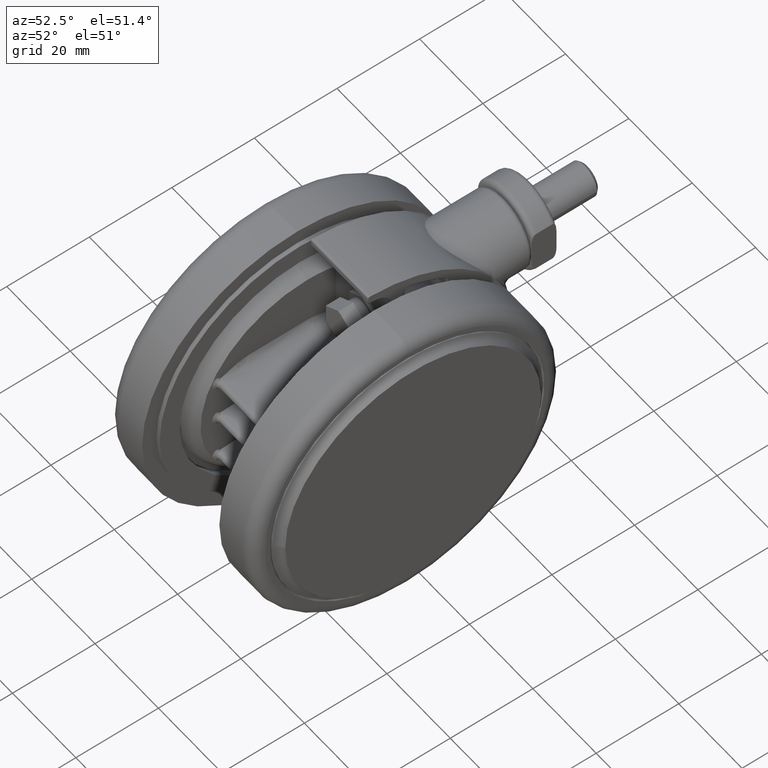
[diagram: clean part render]
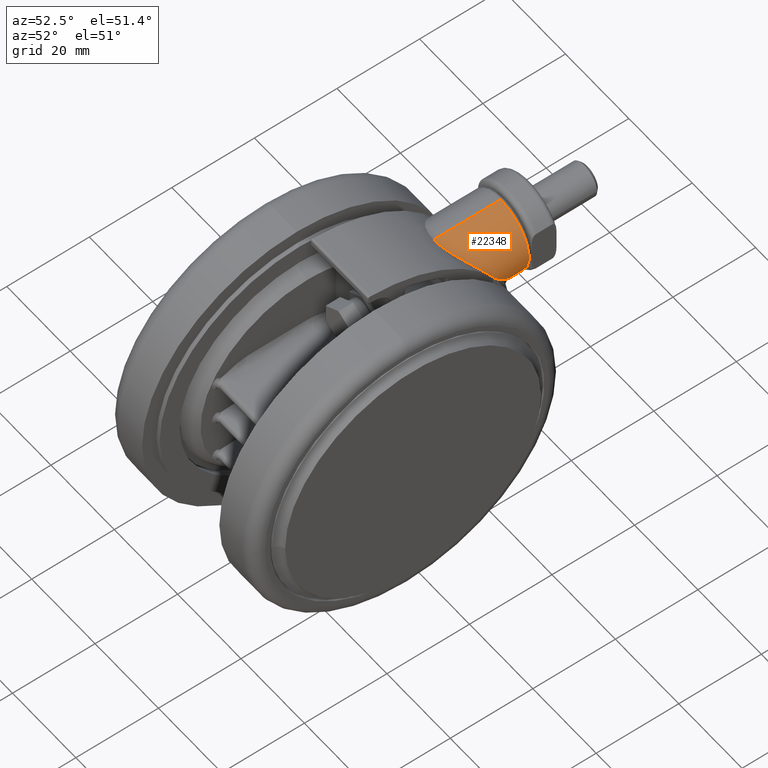
[diagram: same view with one face highlighted and labeled with its STEP entity id]
A machine part, auxiliary view. The second image highlights one B-rep face of the part: STEP entity #22348.
In plain terms, the highlighted cylindrical surface (partial cylindrical patch) has radius 9 mm, axis along (0, 1, 0).
Its self-contained STEP definition (entity closure, byte-faithful):
#497 = CYLINDRICAL_SURFACE ( 'NONE', #46967, 8.999999999999998200 ) ;
#979 = CARTESIAN_POINT ( 'NONE',  ( -36.92553332010082600, -13.61452785778634800, -18.15744400820869600 ) ) ;
#1130 = CARTESIAN_POINT ( 'NONE',  ( -37.58221321066444900, -11.78918439976165400, -20.80921100357775100 ) ) ;
#1242 = CARTESIAN_POINT ( 'NONE',  ( -26.16574146309534800, -26.86740031632782800, -18.65414359588525500 ) ) ;
#1404 = CARTESIAN_POINT ( 'NONE',  ( -23.77498685593116400, -29.00000000000517300, -24.49999999999997900 ) ) ;
#1985 = DIRECTION ( 'NONE',  ( 1.000000000000000000, 2.997602166487920300E-015, 0.0000000000000000000 ) ) ;
#2002 = CARTESIAN_POINT ( 'NONE',  ( -31.93203256544361300, -19.72222138739081700, -15.50428687528633600 ) ) ;
#2144 = CARTESIAN_POINT ( 'NONE',  ( -32.54882872669404000, -19.04437870621105200, -15.55064259133944800 ) ) ;
#2309 = CARTESIAN_POINT ( 'NONE',  ( -33.25889071469955400, -18.34811008380844300, -15.65289095228653700 ) ) ;
#2474 = CARTESIAN_POINT ( 'NONE',  ( -33.56341474608372300, -18.06022399064942300, -15.71152330509052700 ) ) ;
#2635 = CARTESIAN_POINT ( 'NONE',  ( -34.29659873121220700, -17.36862258609035300, -15.89306945349581900 ) ) ;
#2797 = CARTESIAN_POINT ( 'NONE',  ( -34.99513860883757100, -16.67912839033606800, -16.13508243046263900 ) ) ;
#2965 = CARTESIAN_POINT ( 'NONE',  ( -35.87792942236473000, -15.66181007390665400, -16.61167517670917700 ) ) ;
#3704 = ORIENTED_EDGE ( 'NONE', *, *, #13467, .T. ) ;
#4573 = CARTESIAN_POINT ( 'NONE',  ( -36.38098685608309800, -14.85141390802005100, -17.10893047513354000 ) ) ;
#4590 = CARTESIAN_POINT ( 'NONE',  ( 500000.0000000000000, -10.99999999850630100, -24.49999999999997900 ) ) ;
#4742 = CARTESIAN_POINT ( 'NONE',  ( -36.99108746103818400, -13.44810256492034000, -18.32839921172173400 ) ) ;
#4854 = CARTESIAN_POINT ( 'NONE',  ( -31.72144385112048700, -20.00000000000519400, -15.49999999999994700 ) ) ;
#4909 = CARTESIAN_POINT ( 'NONE',  ( -37.69784564058681300, -11.42413380355122300, -21.73922361660785200 ) ) ;
#5008 = CARTESIAN_POINT ( 'NONE',  ( -25.43912302963778400, -27.55274609399373600, -19.59633223457591800 ) ) ;
#5748 = CARTESIAN_POINT ( 'NONE',  ( -31.94287243112489000, -19.70909555049046300, -15.50470222085545100 ) ) ;
#5905 = CARTESIAN_POINT ( 'NONE',  ( -32.67730910096650400, -18.91445061292667900, -15.56569168863898200 ) ) ;
#6070 = CARTESIAN_POINT ( 'NONE',  ( -33.27627415980491300, -18.33157747634451000, -15.65599812679997000 ) ) ;
#6216 = CARTESIAN_POINT ( 'NONE',  ( -33.68637865241908700, -17.94460774785400400, -15.73772003208957500 ) ) ;
#6383 = CARTESIAN_POINT ( 'NONE',  ( -34.40889627589391600, -17.26093803486903900, -15.92691837581610900 ) ) ;
#6547 = CARTESIAN_POINT ( 'NONE',  ( -35.00979186665751500, -16.66397881109469400, -16.14111178614027900 ) ) ;
#6935 = B_SPLINE_CURVE_WITH_KNOTS ( 'NONE', 3,
 ( #4854, #8599, #34751, #12332, #38467, #16060, #42265, #19841, #46039, #23595, #1242, #27366, #5008, #31165, #8762, #34903, #12493, #38651, #16219, #42432, #20012, #46209, #23740, #1404 ),
 .UNSPECIFIED., .F., .F.,
 ( 4, 2, 2, 2, 2, 2, 2, 2, 2, 2, 2, 4 ),
 ( 0.04604928421624549700, 0.04809021191895059700, 0.05013113962165570400, 0.05217206732436080500, 0.05421299502706591200, 0.05625392272977101900, 0.05727438658112356900, 0.05829485043247612700, 0.05931531428382868400, 0.06033577813518123400, 0.06135624198653379100, 0.06237670583788634800 ),
 .UNSPECIFIED. ) ;
#8170 = VERTEX_POINT ( 'NONE', #14858 ) ;
#8331 = CARTESIAN_POINT ( 'NONE',  ( -36.55904906051537000, -14.48565491606392400, -17.38704019068408300 ) ) ;
#8358 = DIRECTION ( 'NONE',  ( -1.000000000000000000, -2.997602166487920300E-015, 0.0000000000000000000 ) ) ;
#8433 = CARTESIAN_POINT ( 'NONE',  ( -35.99811527556079900, -15.47726490161965900, -16.71894176671117500 ) ) ;
#8500 = CARTESIAN_POINT ( 'NONE',  ( -37.14966280699935200, -13.03240771257952900, -18.79989282882243300 ) ) ;
#8599 = CARTESIAN_POINT ( 'NONE',  ( -31.35688465722300600, -20.57821719998654700, -15.49999999999998400 ) ) ;
#8658 = CARTESIAN_POINT ( 'NONE',  ( -37.73838342618140700, -11.29104857387235600, -22.22918579009690300 ) ) ;
#8685 = EDGE_CURVE ( 'NONE', #12225, #38240, #40622, .T. ) ;
#8762 = CARTESIAN_POINT ( 'NONE',  ( -24.93897893322785100, -28.00601721492014200, -20.37705122227204400 ) ) ;
#9296 = VERTEX_POINT ( 'NONE', #44093 ) ;
#9528 = CARTESIAN_POINT ( 'NONE',  ( -32.03949934397580500, -19.59419891139725700, -15.50893481256082000 ) ) ;
#9677 = CARTESIAN_POINT ( 'NONE',  ( -32.70889948524178700, -18.88281449031300600, -15.56960769078278200 ) ) ;
#9831 = CARTESIAN_POINT ( 'NONE',  ( -33.28247399373238100, -18.32568456806409100, -15.65711198672243000 ) ) ;
#9983 = CARTESIAN_POINT ( 'NONE',  ( -33.79300288229577400, -17.84446107629538900, -15.76190151155140700 ) ) ;
#10146 = CARTESIAN_POINT ( 'NONE',  ( -34.43440616971508900, -17.23636203407778200, -15.93481980668685500 ) ) ;
#10294 = CARTESIAN_POINT ( 'NONE',  ( -35.21170674965412000, -16.45196748810229400, -16.22819275489685600 ) ) ;
#11151 = CARTESIAN_POINT ( 'NONE',  ( 500000.0000000000000, -19.99999999850630100, -24.49999999999997900 ) ) ;
#11572 = CARTESIAN_POINT ( 'NONE',  ( -37.82525612248529300, -10.99999999914741100, -24.49999999995632300 ) ) ;
#12059 = CARTESIAN_POINT ( 'NONE',  ( -36.62737222713095500, -14.33695072802664500, -17.50449994542330900 ) ) ;
#12220 = CARTESIAN_POINT ( 'NONE',  ( -37.36276067273704600, -12.44359626935123900, -19.59433696337223600 ) ) ;
#12225 = VERTEX_POINT ( 'NONE', #14553 ) ;
#12332 = CARTESIAN_POINT ( 'NONE',  ( -30.19048296544613300, -22.25415600081634100, -15.76856568133831400 ) ) ;
#12392 = CARTESIAN_POINT ( 'NONE',  ( -37.75649776671205900, -11.23129065250120600, -22.46854470739097900 ) ) ;
#12493 = CARTESIAN_POINT ( 'NONE',  ( -24.50175122457604400, -28.38909939519843900, -21.22481296255700700 ) ) ;
#13070 = CARTESIAN_POINT ( 'NONE',  ( -31.74294570065210100, -19.96620089100334300, -15.49999999999998000 ) ) ;
#13213 = CARTESIAN_POINT ( 'NONE',  ( -32.15160071974490600, -19.46738347588102500, -15.51575883516601500 ) ) ;
#13369 = CARTESIAN_POINT ( 'NONE',  ( -32.71928831270837900, -18.87243429026294800, -15.57091263542995200 ) ) ;
#13467 = EDGE_CURVE ( 'NONE', #8170, #9296, #41517, .T. ) ;
#13540 = CARTESIAN_POINT ( 'NONE',  ( -33.34507005337172800, -18.26627675422404800, -15.66844614448580400 ) ) ;
#13688 = CARTESIAN_POINT ( 'NONE',  ( -33.84540387870521300, -17.79523252427848900, -15.77423146665486800 ) ) ;
#13849 = CARTESIAN_POINT ( 'NONE',  ( -34.44113419255501200, -17.22987325125726300, -15.93691589798910600 ) ) ;
#14010 = CARTESIAN_POINT ( 'NONE',  ( -35.40870476279187100, -16.23434495268135800, -16.32537494854830100 ) ) ;
#14553 = CARTESIAN_POINT ( 'NONE',  ( -31.72144385112048700, -20.00000000000519400, -15.49999999999994700 ) ) ;
#14858 = CARTESIAN_POINT ( 'NONE',  ( -40.00000000002041400, -11.00000000000522200, -24.49999999999997900 ) ) ;
#15640 = CARTESIAN_POINT ( 'NONE',  ( -36.20560956691512900, -15.15865635947245400, -16.90413277711254700 ) ) ;
#15799 = CARTESIAN_POINT ( 'NONE',  ( -36.69378525408080800, -14.18227201525767400, -17.63293250794841100 ) ) ;
#15961 = CARTESIAN_POINT ( 'NONE',  ( -37.44114257371501300, -12.21379651007148000, -19.98606417980631600 ) ) ;
#16060 = CARTESIAN_POINT ( 'NONE',  ( -28.97839240994041500, -23.81024205583271000, -16.32788881423418600 ) ) ;
#16107 = CARTESIAN_POINT ( 'NONE',  ( -37.79371199070303100, -11.10713959956243500, -23.10112988313652600 ) ) ;
#16219 = CARTESIAN_POINT ( 'NONE',  ( -24.14374008542844400, -28.69395994590112100, -22.14954226701362900 ) ) ;
#16800 = CARTESIAN_POINT ( 'NONE',  ( -31.77233836500666800, -19.92482561867169700, -15.50018083990648800 ) ) ;
#16959 = VECTOR ( 'NONE', #8358, 1000.000000000000000 ) ;
#16972 = CARTESIAN_POINT ( 'NONE',  ( -32.17962616897315800, -19.43626618122878800, -15.51767049985771500 ) ) ;
#17135 = CARTESIAN_POINT ( 'NONE',  ( -32.88127274059132800, -18.71193947076167100, -15.59217402025398200 ) ) ;
#17299 = CARTESIAN_POINT ( 'NONE',  ( -33.44382881629020700, -18.17292436192499800, -15.68736064969564500 ) ) ;
#17464 = CARTESIAN_POINT ( 'NONE',  ( -33.85698752452432100, -17.78434571671401800, -15.77699128278409500 ) ) ;
#17637 = CARTESIAN_POINT ( 'NONE',  ( -34.65287228152649100, -17.02411884839973800, -16.00563063611630800 ) ) ;
#17801 = CARTESIAN_POINT ( 'NONE',  ( -35.51386649952927900, -16.11304519030642600, -16.38261981142894200 ) ) ;
#19563 = CARTESIAN_POINT ( 'NONE',  ( -36.78448284140579000, -13.96492879659918400, -17.82056437573884700 ) ) ;
#19667 = CARTESIAN_POINT ( 'NONE',  ( 500000.0000000000000, -28.99999999850629700, -24.49999999999997900 ) ) ;
#19734 = CARTESIAN_POINT ( 'NONE',  ( -37.46149026722777400, -12.15382703782053400, -20.09073099111820000 ) ) ;
#19841 = CARTESIAN_POINT ( 'NONE',  ( -27.74578462794880500, -25.23509289590245100, -17.15845812362813700 ) ) ;
#19898 = CARTESIAN_POINT ( 'NONE',  ( -37.82525692805421600, -11.00000000000717600, -24.09585673377635100 ) ) ;
#20012 = CARTESIAN_POINT ( 'NONE',  ( -23.89536872902867500, -28.90095464020175000, -23.12522792606382200 ) ) ;
#20177 = ORIENTED_EDGE ( 'NONE', *, *, #8685, .T. ) ;
#20602 = CARTESIAN_POINT ( 'NONE',  ( -31.85918524822758300, -19.81186002682246500, -15.50188778090373100 ) ) ;
#20752 = CARTESIAN_POINT ( 'NONE',  ( -32.26568722432905600, -19.34129077715201800, -15.52375781130512100 ) ) ;
#20892 = CARTESIAN_POINT ( 'NONE',  ( -33.09532815289157500, -18.50444624705340900, -15.62488008673588900 ) ) ;
#20981 = ORIENTED_EDGE ( 'NONE', *, *, #31336, .F. ) ;
#21061 = CARTESIAN_POINT ( 'NONE',  ( -33.51163833919091000, -18.10897343888559500, -15.70088341255862500 ) ) ;
#21225 = CARTESIAN_POINT ( 'NONE',  ( -33.97555379300837300, -17.67289044744978500, -15.80535818379997400 ) ) ;
#21379 = CARTESIAN_POINT ( 'NONE',  ( -34.86499599456276900, -16.81232620324276200, -16.08318196027104500 ) ) ;
#21520 = AXIS2_PLACEMENT_3D ( 'NONE', #24342, #1985, #28123 ) ;
#21539 = CARTESIAN_POINT ( 'NONE',  ( -35.53801611781428000, -16.08467402726271100, -16.39628097118335500 ) ) ;
#22312 = EDGE_LOOP ( 'NONE', ( #24619, #39535, #3704, #45108, #20981, #20177 ) ) ;
#22348 = ADVANCED_FACE ( 'NONE', ( #30310 ), #497, .T. ) ;
#23130 = B_SPLINE_CURVE_WITH_KNOTS ( 'NONE', 3,
 ( #38047, #15640, #4573, #30731, #8331, #34483, #12059, #38214, #15799, #41980, #19563, #45780, #23324, #979, #27103, #4742, #30888, #8500, #34651, #12220, #38372, #15961, #42143, #19734, #45950, #23484, #1130, #27264, #4909, #31048, #8658, #34810, #12392, #38534, #16107, #42319, #19898, #46104 ),
 .UNSPECIFIED., .F., .F.,
 ( 4, 2, 2, 1, 2, 2, 2, 2, 1, 1, 2, 2, 2, 1, 1, 1, 2, 2, 2, 1, 1, 2, 4 ),
 ( 0.0000000000000000000, 0.06247797249322891600, 0.07028771905488301300, 0.07809746561653709000, 0.08590721217819118100, 0.09371695873984527100, 0.1249559449864625500, 0.1327656915481169300, 0.1405754381097713600, 0.1561949312330801200, 0.1874339174796979300, 0.2499118899729333700, 0.2538167632537609000, 0.2577216365345884100, 0.2655313830962440800, 0.2811508762195558100, 0.3123898624661787200, 0.3748678349594253300, 0.3826775815210807200, 0.3904873280827361200, 0.4061068212060463000, 0.4373458074526671000, 0.4998237799459088200 ),
 .UNSPECIFIED. ) ;
#23324 = CARTESIAN_POINT ( 'NONE',  ( -36.91266165132926600, -13.64693793595780100, -18.12496915784122800 ) ) ;
#23484 = CARTESIAN_POINT ( 'NONE',  ( -37.54183397915785700, -11.91345569206638200, -20.54088567670966000 ) ) ;
#23595 = CARTESIAN_POINT ( 'NONE',  ( -26.54941240150530000, -26.48963220947726800, -18.23976476340305200 ) ) ;
#23740 = CARTESIAN_POINT ( 'NONE',  ( -23.77498685593116800, -29.00000000000518300, -24.15297936187199600 ) ) ;
#24053 = VERTEX_POINT ( 'NONE', #37624 ) ;
#24342 = CARTESIAN_POINT ( 'NONE',  ( -40.00000000002038500, -20.00000000000522200, -24.49999999999997900 ) ) ;
#24352 = CARTESIAN_POINT ( 'NONE',  ( -31.92236026902312700, -19.73396846294406300, -15.50392677461312700 ) ) ;
#24519 = CARTESIAN_POINT ( 'NONE',  ( -32.47992062104760400, -19.11544174823066200, -15.54345461743156400 ) ) ;
#24619 = ORIENTED_EDGE ( 'NONE', *, *, #42605, .T. ) ;
#24681 = CARTESIAN_POINT ( 'NONE',  ( -33.23477065953961300, -18.37107499347128900, -15.64862084401447500 ) ) ;
#24837 = CARTESIAN_POINT ( 'NONE',  ( -33.55351463480171500, -18.06954087796584200, -15.70947132475149200 ) ) ;
#24991 = CARTESIAN_POINT ( 'NONE',  ( -34.22689207153932500, -17.43497964414682900, -15.87312478480518900 ) ) ;
#25160 = CARTESIAN_POINT ( 'NONE',  ( -34.97929788504355700, -16.69547765970276400, -16.12859787141306700 ) ) ;
#25322 = CARTESIAN_POINT ( 'NONE',  ( -35.72774905069311300, -15.86028901046549700, -16.50507174479736200 ) ) ;
#26018 = DIRECTION ( 'NONE',  ( -1.000000000000000000, -2.997602166487920300E-015, 0.0000000000000000000 ) ) ;
#26482 = VECTOR ( 'NONE', #42083, 1000.000000000000000 ) ;
#27103 = CARTESIAN_POINT ( 'NONE',  ( -36.95193251391544500, -13.54772028260588500, -18.22541974021383000 ) ) ;
#27264 = CARTESIAN_POINT ( 'NONE',  ( -37.65665000430351500, -11.55703346892945600, -21.35771084965235300 ) ) ;
#27366 = CARTESIAN_POINT ( 'NONE',  ( -25.61796859146751300, -27.38673021308722600, -19.35024050953052600 ) ) ;
#27566 = EDGE_CURVE ( 'NONE', #37632, #8170, #45705, .T. ) ;
#28123 = DIRECTION ( 'NONE',  ( -3.083952846180990500E-015, 1.000000000000000000, 0.0000000000000000000 ) ) ;
#28132 = CARTESIAN_POINT ( 'NONE',  ( -31.93854241000995100, -19.71433101215889700, -15.50453398599303300 ) ) ;
#28295 = CARTESIAN_POINT ( 'NONE',  ( -32.63373076769328000, -18.95828759319908500, -15.56042847072793700 ) ) ;
#28442 = CARTESIAN_POINT ( 'NONE',  ( -33.27104498921164600, -18.33654903643042300, -15.65506072573373200 ) ) ;
#28612 = CARTESIAN_POINT ( 'NONE',  ( -33.63178350633688800, -17.99590330904859700, -15.72577491778431200 ) ) ;
#28784 = CARTESIAN_POINT ( 'NONE',  ( -34.37238653335888500, -17.29603267777448000, -15.91575002944227000 ) ) ;
#28935 = CARTESIAN_POINT ( 'NONE',  ( -35.00565260396822300, -16.66826148400143400, -16.13940476676221200 ) ) ;
#29083 = CARTESIAN_POINT ( 'NONE',  ( -35.99811527556079900, -15.47726490161965900, -16.71894176671117500 ) ) ;
#30310 = FACE_OUTER_BOUND ( 'NONE', #22312, .T. ) ;
#30731 = CARTESIAN_POINT ( 'NONE',  ( -36.54215467944749200, -14.52116163078407500, -17.35966018031089000 ) ) ;
#30888 = CARTESIAN_POINT ( 'NONE',  ( -37.07934209850503700, -13.21997911700554300, -18.57577606531377900 ) ) ;
#31048 = CARTESIAN_POINT ( 'NONE',  ( -37.73470822711377800, -11.30313772371196500, -22.18327781971970900 ) ) ;
#31165 = CARTESIAN_POINT ( 'NONE',  ( -25.09957171492884200, -27.86241729578174600, -20.10997433025818600 ) ) ;
#31336 = EDGE_CURVE ( 'NONE', #12225, #24053, #6935, .T. ) ;
#31924 = CARTESIAN_POINT ( 'NONE',  ( -31.98150142700722400, -19.66245785630938800, -15.50622470460183800 ) ) ;
#32078 = CARTESIAN_POINT ( 'NONE',  ( -32.69938009565905200, -18.89233486862650600, -15.56841842704159600 ) ) ;
#32246 = CARTESIAN_POINT ( 'NONE',  ( -33.27976476144383600, -18.32825936572320200, -15.65662473360345300 ) ) ;
#32411 = CARTESIAN_POINT ( 'NONE',  ( -33.75900574366143300, -17.87638911244982500, -15.75409674848741700 ) ) ;
#32552 = CARTESIAN_POINT ( 'NONE',  ( -34.42680510746846800, -17.24369000063472500, -15.93245650846961900 ) ) ;
#32716 = CARTESIAN_POINT ( 'NONE',  ( -35.11697688933661300, -16.55287792472534400, -16.18555276450917900 ) ) ;
#34483 = CARTESIAN_POINT ( 'NONE',  ( -36.59336982221258700, -14.41183453438876100, -17.44488797518971200 ) ) ;
#34651 = CARTESIAN_POINT ( 'NONE',  ( -37.28320272522825000, -12.66940843598248300, -19.26390570097392500 ) ) ;
#34751 = CARTESIAN_POINT ( 'NONE',  ( -30.97771995613139900, -21.14458766008605300, -15.55522031431256600 ) ) ;
#34810 = CARTESIAN_POINT ( 'NONE',  ( -37.74577703865773500, -11.26668593300032800, -22.32476265072201100 ) ) ;
#34903 = CARTESIAN_POINT ( 'NONE',  ( -24.64008248997930700, -28.26934745199116300, -20.93448306866790900 ) ) ;
#35496 = CARTESIAN_POINT ( 'NONE',  ( -31.72144385112048700, -20.00000000000519400, -15.49999999999994700 ) ) ;
#35650 = CARTESIAN_POINT ( 'NONE',  ( -32.11322359252713500, -19.51035448061761100, -15.51327126801065700 ) ) ;
#35815 = CARTESIAN_POINT ( 'NONE',  ( -32.71525916531593500, -18.87645820069574000, -15.57040515561894300 ) ) ;
#35958 = CARTESIAN_POINT ( 'NONE',  ( -33.30848133500316500, -18.30097027665143700, -15.66179356728443200 ) ) ;
#36117 = CARTESIAN_POINT ( 'NONE',  ( -33.82861249856289700, -17.81101035983597200, -15.77025316584018600 ) ) ;
#36282 = CARTESIAN_POINT ( 'NONE',  ( -34.43945706643412300, -17.23149094652405500, -15.93639303964548800 ) ) ;
#36433 = LINE ( 'NONE', #19667, #26482 ) ;
#36450 = CARTESIAN_POINT ( 'NONE',  ( -35.34457629867424800, -16.30598831285566400, -16.29286224639685400 ) ) ;
#37323 = DIRECTION ( 'NONE',  ( 0.0000000000000000000, -1.000000000000000000, 0.0000000000000000000 ) ) ;
#37624 = CARTESIAN_POINT ( 'NONE',  ( -23.77498685593116400, -29.00000000000517300, -24.49999999999997900 ) ) ;
#37632 = VERTEX_POINT ( 'NONE', #11572 ) ;
#38047 = CARTESIAN_POINT ( 'NONE',  ( -35.99811527556079900, -15.47726490161965900, -16.71894176671117500 ) ) ;
#38214 = CARTESIAN_POINT ( 'NONE',  ( -36.66073791898512700, -14.26007388402885900, -17.56776926032903700 ) ) ;
#38240 = VERTEX_POINT ( 'NONE', #8433 ) ;
#38257 = EDGE_CURVE ( 'NONE', #24053, #9296, #36433, .T. ) ;
#38372 = CARTESIAN_POINT ( 'NONE',  ( -37.43723053586203500, -12.22528992049909200, -19.96628995177435000 ) ) ;
#38467 = CARTESIAN_POINT ( 'NONE',  ( -29.78835534453919500, -22.78878538424767400, -15.92538503271714500 ) ) ;
#38534 = CARTESIAN_POINT ( 'NONE',  ( -37.77892496494815300, -11.15681622532709500, -22.80682729147557500 ) ) ;
#38651 = CARTESIAN_POINT ( 'NONE',  ( -24.25306027693822100, -28.60185037274112600, -21.83316499240594400 ) ) ;
#39384 = CARTESIAN_POINT ( 'NONE',  ( -32.16837270347620100, -19.44874298435979700, -15.51689615053569900 ) ) ;
#39535 = ORIENTED_EDGE ( 'NONE', *, *, #27566, .T. ) ;
#39544 = CARTESIAN_POINT ( 'NONE',  ( -32.79686020132052000, -18.79500205021003000, -15.58071145743624800 ) ) ;
#39711 = CARTESIAN_POINT ( 'NONE',  ( -33.41700734836195600, -18.19825902241186100, -15.68216214718065300 ) ) ;
#39889 = CARTESIAN_POINT ( 'NONE',  ( -33.85238302127488200, -17.78867341199629200, -15.77589318584097500 ) ) ;
#40054 = CARTESIAN_POINT ( 'NONE',  ( -34.55165295736150500, -17.12321521267693900, -15.97146386879492000 ) ) ;
#40207 = CARTESIAN_POINT ( 'NONE',  ( -35.47948526112134000, -16.15309215184179000, -16.36351235779602900 ) ) ;
#40622 = B_SPLINE_CURVE_WITH_KNOTS ( 'NONE', 3,
 ( #35496, #13070, #16800, #43028, #20602, #46805, #24352, #2002, #28132, #5748, #31924, #9528, #35650, #13213, #39384, #16972, #43174, #20752, #46963, #24519, #2144, #28295, #5905, #32078, #9677, #35815, #13369, #39544, #17135, #43346, #20892, #47109, #24681, #2309, #28442, #6070, #32246, #9831, #35958, #13540, #39711, #17299, #43510, #21061, #47273, #24837, #2474, #28612, #6216, #32411, #9983, #36117, #13688, #39889, #17464, #43661, #21225, #47449, #24991, #2635, #28784, #6383, #32552, #10146, #36282, #13849, #40054, #17637, #43825, #21379, #47621, #25160, #2797, #28935, #6547, #32716, #10294, #36450, #14010, #40207, #17801, #43999, #21539, #47776, #25322, #2965, #29083 ),
 .UNSPECIFIED., .F., .F.,
 ( 4, 2, 1, 1, 1, 2, 2, 1, 1, 1, 2, 2, 2, 1, 1, 1, 1, 2, 2, 2, 1, 1, 1, 1, 1, 2, 2, 2, 2, 1, 2, 2, 2, 1, 1, 1, 2, 2, 2, 1, 1, 1, 1, 2, 2, 2, 1, 1, 1, 2, 2, 2, 1, 1, 1, 2, 2, 4 ),
 ( 0.0000000000000000000, 0.03125000000004023200, 0.04687500000005857800, 0.05468750000006867400, 0.05859375000007461400, 0.06054687500007809700, 0.06250000000008157400, 0.09375000000010244600, 0.1093750000001123800, 0.1171875000001168900, 0.1210937500001174900, 0.1250000000001180700, 0.1875000000001346400, 0.2187500000001411600, 0.2343750000001450200, 0.2421875000001458800, 0.2460937500001457700, 0.2480468750001451300, 0.2500000000001445000, 0.3125000000000471300, 0.3437499999999972800, 0.3593749999999718600, 0.3671874999999592000, 0.3710937499999529300, 0.3730468749999493700, 0.3740234374999486500, 0.3749999999999479900, 0.4062499999999256200, 0.4218749999999142900, 0.4296874999999085200, 0.4335937499999060800, 0.4374999999999035800, 0.4687499999998884200, 0.4843749999998808700, 0.4921874999998783800, 0.4960937499998777600, 0.4980468749998769900, 0.4999999999998761500, 0.5624999999998144800, 0.5937499999997820600, 0.6093749999997650800, 0.6171874999997580800, 0.6210937499997558600, 0.6230468749997560800, 0.6249999999997562000, 0.6874999999997730700, 0.7187499999997816200, 0.7343749999997860600, 0.7421874999997896100, 0.7460937499997920600, 0.7499999999997943900, 0.8124999999998391300, 0.8437499999998606700, 0.8593749999998698800, 0.8671874999998741000, 0.8710937499998777600, 0.8749999999998814300, 1.000000000000000000 ),
 .UNSPECIFIED. ) ;
#41517 = CIRCLE ( 'NONE', #21520, 9.000000000000000000 ) ;
#41980 = CARTESIAN_POINT ( 'NONE',  ( -36.70867812681939300, -14.14659984652161900, -17.66333299873028700 ) ) ;
#42083 = DIRECTION ( 'NONE',  ( -1.000000000000000000, -2.997602166487920300E-015, 0.0000000000000000000 ) ) ;
#42143 = CARTESIAN_POINT ( 'NONE',  ( -37.44932116158577200, -12.18972205387362400, -20.02784841718727900 ) ) ;
#42265 = CARTESIAN_POINT ( 'NONE',  ( -28.56908258596522300, -24.29909459798132300, -16.57395304146838900 ) ) ;
#42319 = CARTESIAN_POINT ( 'NONE',  ( -37.81737099262471000, -11.02725990712742100, -23.69430151537235200 ) ) ;
#42432 = CARTESIAN_POINT ( 'NONE',  ( -23.96531813428851300, -28.84314562269595000, -22.79460661685243700 ) ) ;
#42605 = EDGE_CURVE ( 'NONE', #38240, #37632, #23130, .T. ) ;
#43028 = CARTESIAN_POINT ( 'NONE',  ( -31.82826358348241800, -19.85140760923643600, -15.50119344985655300 ) ) ;
#43174 = CARTESIAN_POINT ( 'NONE',  ( -32.18631913803331900, -19.42886618273993400, -15.51813867787270600 ) ) ;
#43346 = CARTESIAN_POINT ( 'NONE',  ( -33.02167852033714700, -18.57557206414717400, -15.61331777553311000 ) ) ;
#43510 = CARTESIAN_POINT ( 'NONE',  ( -33.48832457255134900, -18.13095206611571800, -15.69620171475553300 ) ) ;
#43661 = CARTESIAN_POINT ( 'NONE',  ( -33.85795607274626200, -17.78343542660453400, -15.77722214885848500 ) ) ;
#43825 = CARTESIAN_POINT ( 'NONE',  ( -34.79577568703008000, -16.88185979091372200, -16.05726664426212800 ) ) ;
#43999 = CARTESIAN_POINT ( 'NONE',  ( -35.52838509938040100, -16.09600600991774400, -16.39081567010603300 ) ) ;
#44093 = CARTESIAN_POINT ( 'NONE',  ( -40.00000000002035700, -29.00000000000522200, -24.49999999999997900 ) ) ;
#45108 = ORIENTED_EDGE ( 'NONE', *, *, #38257, .F. ) ;
#45705 = LINE ( 'NONE', #4590, #16959 ) ;
#45780 = CARTESIAN_POINT ( 'NONE',  ( -36.84276384836632400, -13.82195768156478100, -17.95244729983962600 ) ) ;
#45950 = CARTESIAN_POINT ( 'NONE',  ( -37.48919341471537300, -12.07160715303766300, -20.23889218362901600 ) ) ;
#46039 = CARTESIAN_POINT ( 'NONE',  ( -27.33865165889751500, -25.67430698056014600, -17.49228198896582500 ) ) ;
#46104 = CARTESIAN_POINT ( 'NONE',  ( -37.82525612248529300, -10.99999999914741100, -24.49999999995632300 ) ) ;
#46209 = CARTESIAN_POINT ( 'NONE',  ( -23.79989951083487700, -28.97962403285112000, -23.80477054805822900 ) ) ;
#46805 = CARTESIAN_POINT ( 'NONE',  ( -31.90043887094806200, -19.76075874977863500, -15.50315806599926000 ) ) ;
#46963 = CARTESIAN_POINT ( 'NONE',  ( -32.34725783928146100, -19.25389250952287400, -15.53050070651618600 ) ) ;
#46967 = AXIS2_PLACEMENT_3D ( 'NONE', #11151, #26018, #37323 ) ;
#47109 = CARTESIAN_POINT ( 'NONE',  ( -33.18728452391693700, -18.41637491621195400, -15.64035405769307700 ) ) ;
#47273 = CARTESIAN_POINT ( 'NONE',  ( -33.53655093886422400, -18.08551131205792800, -15.70597931114821000 ) ) ;
#47449 = CARTESIAN_POINT ( 'NONE',  ( -34.08115117000914300, -17.57326679174255100, -15.83280970821825800 ) ) ;
#47621 = CARTESIAN_POINT ( 'NONE',  ( -34.94184807850489000, -16.73396879884247200, -16.11346168662327500 ) ) ;
#47776 = CARTESIAN_POINT ( 'NONE',  ( -35.54194462693162400, -16.08004242486941800, -16.39851943287344600 ) ) ;